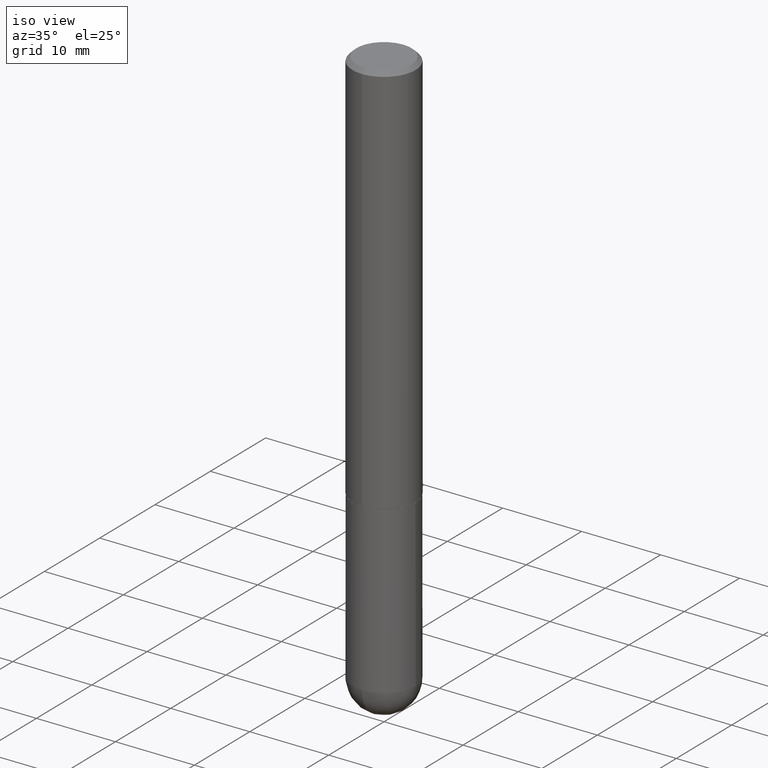
[diagram: clean part render]
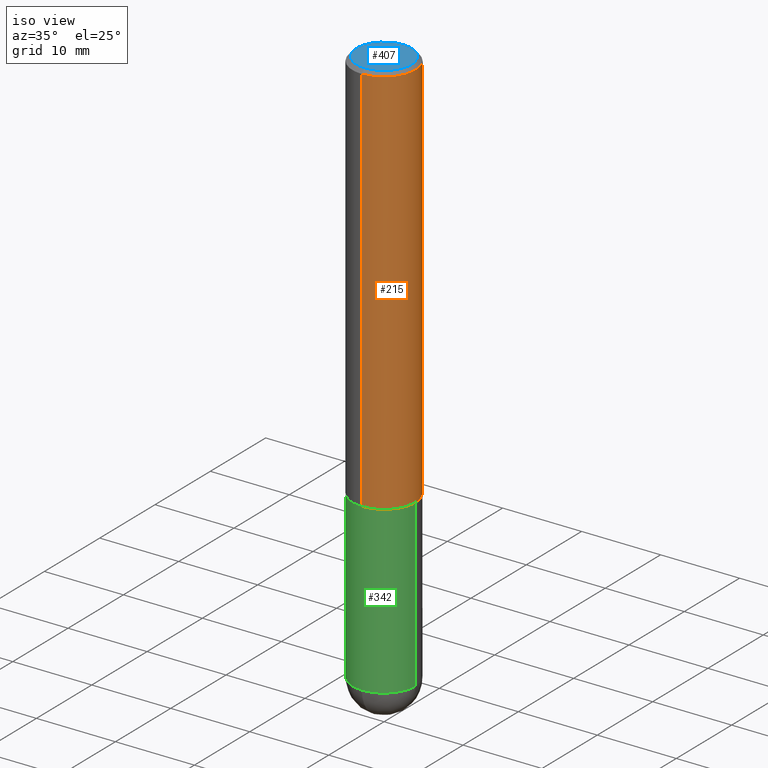
[diagram: same view with three faces highlighted in distinct colors, each labeled with its STEP entity id]
A machine part, iso view with three faces highlighted in distinct colors.
Their STEP definitions:

[orange] entity #215 — the highlighted cylindrical surface (partial cylindrical patch) has radius 4.0005 mm, axis along (-0, 0, 1).
#2 = DIRECTION ( 'NONE',  ( -6.982962677686265922E-15, -1.000000000000000000, 3.469013325287954477E-15 ) ) ;
#18 = EDGE_CURVE ( 'NONE', #45, #38, #117, .T. ) ;
#24 = CARTESIAN_POINT ( 'NONE',  ( 4.825502781678292621E-29, -6.849379294212400691E-15, -1.967499999999999805 ) ) ;
#30 = CARTESIAN_POINT ( 'NONE',  ( 0.000000000000000000, 0.000000000000000000, 0.000000000000000000 ) ) ;
#31 = EDGE_CURVE ( 'NONE', #384, #45, #404, .T. ) ;
#35 = CIRCLE ( 'NONE', #82, 0.1574999999999999456 ) ;
#38 = VERTEX_POINT ( 'NONE', #274 ) ;
#45 = VERTEX_POINT ( 'NONE', #340 ) ;
#56 = AXIS2_PLACEMENT_3D ( 'NONE', #30, #353, #89 ) ;
#59 = EDGE_CURVE ( 'NONE', #384, #326, #311, .T. ) ;
#64 = ORIENTED_EDGE ( 'NONE', *, *, #59, .F. ) ;
#70 = VECTOR ( 'NONE', #314, 39.37007874015748143 ) ;
#78 = ORIENTED_EDGE ( 'NONE', *, *, #331, .F. ) ;
#82 = AXIS2_PLACEMENT_3D ( 'NONE', #350, #251, #2 ) ;
#89 = DIRECTION ( 'NONE',  ( -6.982962677686265922E-15, -1.000000000000000000, 3.481260124123204048E-15 ) ) ;
#111 = CARTESIAN_POINT ( 'NONE',  ( 1.119104808822158195E-15, 0.1575000000000000844, -5.482984695494049531E-16 ) ) ;
#114 = DIRECTION ( 'NONE',  ( -2.452606242276134078E-29, 3.481260124123204048E-15, 1.000000000000000000 ) ) ;
#117 = LINE ( 'NONE', #111, #70 ) ;
#146 = DIRECTION ( 'NONE',  ( -2.452606242276133797E-29, 3.481260124123203654E-15, 1.000000000000000000 ) ) ;
#165 = ORIENTED_EDGE ( 'NONE', *, *, #18, .T. ) ;
#215 = ADVANCED_FACE ( 'NONE', ( #318 ), #253, .T. ) ;
#216 = CARTESIAN_POINT ( 'NONE',  ( -1.080528434649015385E-15, -0.1575000000000000289, -0.01999999999999948347 ) ) ;
#249 = ORIENTED_EDGE ( 'NONE', *, *, #31, .T. ) ;
#251 = DIRECTION ( 'NONE',  ( -2.452606242276133797E-29, 3.481260124123203654E-15, 1.000000000000000000 ) ) ;
#253 = CYLINDRICAL_SURFACE ( 'NONE', #56, 0.1575000000000000844 ) ;
#258 = EDGE_LOOP ( 'NONE', ( #249, #165, #78, #64 ) ) ;
#263 = CARTESIAN_POINT ( 'NONE',  ( -1.099816621735539951E-15, -0.1575000000000070510, -1.967499999999999138 ) ) ;
#272 = DIRECTION ( 'NONE',  ( -6.982962677686265922E-15, -1.000000000000000000, 3.469013325287948955E-15 ) ) ;
#274 = CARTESIAN_POINT ( 'NONE',  ( 1.099816621735586889E-15, 0.1574999999999998901, -0.02000000000000057634 ) ) ;
#311 = LINE ( 'NONE', #395, #333 ) ;
#314 = DIRECTION ( 'NONE',  ( -2.452606242276134078E-29, 3.481260124123204048E-15, 1.000000000000000000 ) ) ;
#318 = FACE_OUTER_BOUND ( 'NONE', #258, .T. ) ;
#326 = VERTEX_POINT ( 'NONE', #216 ) ;
#331 = EDGE_CURVE ( 'NONE', #326, #38, #35, .T. ) ;
#333 = VECTOR ( 'NONE', #114, 39.37007874015748143 ) ;
#339 = AXIS2_PLACEMENT_3D ( 'NONE', #24, #146, #272 ) ;
#340 = CARTESIAN_POINT ( 'NONE',  ( 1.119104808822183241E-15, 0.1574999999999933398, -1.967500000000000249 ) ) ;
#350 = CARTESIAN_POINT ( 'NONE',  ( 4.905212484552274391E-31, -6.962520248246417464E-17, -0.02000000000000003164 ) ) ;
#353 = DIRECTION ( 'NONE',  ( -2.452606242276133797E-29, 3.481260124123203654E-15, 1.000000000000000000 ) ) ;
#384 = VERTEX_POINT ( 'NONE', #263 ) ;
#395 = CARTESIAN_POINT ( 'NONE',  ( -1.099816621735587480E-15, -0.1575000000000000844, 5.482984695494049531E-16 ) ) ;
#404 = CIRCLE ( 'NONE', #339, 0.1575000000000001954 ) ;

[blue] entity #407 — the highlighted planar face has unit normal (0, -0, -1).
#26 = EDGE_CURVE ( 'NONE', #168, #302, #305, .T. ) ;
#28 = CARTESIAN_POINT ( 'NONE',  ( -1.011923454671300645E-15, -0.1375000000000000666, 3.662865253003379997E-16 ) ) ;
#41 = EDGE_CURVE ( 'NONE', #302, #168, #149, .T. ) ;
#42 = PLANE ( 'NONE',  #296 ) ;
#74 = DIRECTION ( 'NONE',  ( 2.452606242276133237E-29, -3.481260124123204048E-15, -1.000000000000000000 ) ) ;
#80 = DIRECTION ( 'NONE',  ( -2.452606242276133797E-29, 3.481260124123203654E-15, 1.000000000000000000 ) ) ;
#85 = DIRECTION ( 'NONE',  ( -6.982962677686265922E-15, -1.000000000000000000, 3.481260124123203654E-15 ) ) ;
#131 = EDGE_LOOP ( 'NONE', ( #282, #230 ) ) ;
#149 = CIRCLE ( 'NONE', #218, 0.1375000000000000666 ) ;
#152 = CARTESIAN_POINT ( 'NONE',  ( 2.756404244058457991E-45, -3.912474825922058918E-31, -1.123867417666027294E-16 ) ) ;
#168 = VERTEX_POINT ( 'NONE', #175 ) ;
#175 = CARTESIAN_POINT ( 'NONE',  ( 1.029986994958724576E-15, 0.1375000000000000666, -5.910600088335435079E-16 ) ) ;
#208 = DIRECTION ( 'NONE',  ( -6.982962677686265922E-15, -1.000000000000000000, 3.481260124123203654E-15 ) ) ;
#218 = AXIS2_PLACEMENT_3D ( 'NONE', #278, #80, #208 ) ;
#230 = ORIENTED_EDGE ( 'NONE', *, *, #41, .T. ) ;
#246 = DIRECTION ( 'NONE',  ( -2.452606242276133797E-29, 3.481260124123203654E-15, 1.000000000000000000 ) ) ;
#265 = FACE_OUTER_BOUND ( 'NONE', #131, .T. ) ;
#275 = AXIS2_PLACEMENT_3D ( 'NONE', #152, #246, #85 ) ;
#278 = CARTESIAN_POINT ( 'NONE',  ( 2.756404244058457991E-45, -3.912474825922058918E-31, -1.123867417666027294E-16 ) ) ;
#282 = ORIENTED_EDGE ( 'NONE', *, *, #26, .T. ) ;
#290 = CARTESIAN_POINT ( 'NONE',  ( 9.601573681818620671E-16, 0.1375000000000000666, -5.348666379502421309E-16 ) ) ;
#296 = AXIS2_PLACEMENT_3D ( 'NONE', #290, #74, #332 ) ;
#302 = VERTEX_POINT ( 'NONE', #28 ) ;
#305 = CIRCLE ( 'NONE', #275, 0.1375000000000000666 ) ;
#332 = DIRECTION ( 'NONE',  ( 6.982962677686265922E-15, 1.000000000000000000, -3.481260124123204048E-15 ) ) ;
#407 = ADVANCED_FACE ( 'NONE', ( #265 ), #42, .F. ) ;

[green] entity #342 — the highlighted cylindrical surface (partial cylindrical patch) has radius 4.0005 mm, axis along (-0, 0, 1).
#7 = DIRECTION ( 'NONE',  ( -2.445468806185136597E-29, 3.491481338843145583E-15, 1.000000000000000000 ) ) ;
#8 = VERTEX_POINT ( 'NONE', #401 ) ;
#9 = DIRECTION ( 'NONE',  ( -2.445468806185136597E-29, 3.491481338843145583E-15, 1.000000000000000000 ) ) ;
#47 = CARTESIAN_POINT ( 'NONE',  ( 6.835818953929311707E-29, -9.759737786468243605E-15, -2.795299999999999674 ) ) ;
#60 = CARTESIAN_POINT ( 'NONE',  ( -0.1575000000000000011, 1.119104808822157801E-15, -7.747322767151475583E-30 ) ) ;
#61 = LINE ( 'NONE', #186, #184 ) ;
#63 = DIRECTION ( 'NONE',  ( 1.000000000000000000, -6.982962677686261977E-15, 0.000000000000000000 ) ) ;
#73 = VERTEX_POINT ( 'NONE', #373 ) ;
#77 = FACE_OUTER_BOUND ( 'NONE', #139, .T. ) ;
#93 = CARTESIAN_POINT ( 'NONE',  ( 0.1575000000000000011, -9.416176022726072770E-15, -2.795299999999999674 ) ) ;
#94 = CIRCLE ( 'NONE', #160, 0.1575000000000000011 ) ;
#100 = DIRECTION ( 'NONE',  ( 1.000000000000000000, -6.982962677686268288E-15, 0.000000000000000000 ) ) ;
#103 = VERTEX_POINT ( 'NONE', #119 ) ;
#119 = CARTESIAN_POINT ( 'NONE',  ( -0.1575000000000000011, -7.197254592168330052E-15, -1.968499999999999694 ) ) ;
#127 = DIRECTION ( 'NONE',  ( -2.445468806185136877E-29, 3.491481338843145188E-15, 1.000000000000000000 ) ) ;
#139 = EDGE_LOOP ( 'NONE', ( #330, #300, #297, #238, #164 ) ) ;
#156 = CARTESIAN_POINT ( 'NONE',  ( 6.835818953929311707E-29, -9.759737786468243605E-15, -2.795299999999999674 ) ) ;
#160 = AXIS2_PLACEMENT_3D ( 'NONE', #335, #9, #100 ) ;
#164 = ORIENTED_EDGE ( 'NONE', *, *, #366, .F. ) ;
#166 = AXIS2_PLACEMENT_3D ( 'NONE', #47, #7, #327 ) ;
#171 = AXIS2_PLACEMENT_3D ( 'NONE', #191, #228, #198 ) ;
#180 = DIRECTION ( 'NONE',  ( -2.445468806185136877E-29, 3.491481338843145188E-15, 1.000000000000000000 ) ) ;
#184 = VECTOR ( 'NONE', #127, 39.37007874015748143 ) ;
#185 = LINE ( 'NONE', #60, #203 ) ;
#186 = CARTESIAN_POINT ( 'NONE',  ( 0.1575000000000000011, -1.099816621735586889E-15, 7.679978421878598033E-30 ) ) ;
#191 = CARTESIAN_POINT ( 'NONE',  ( 0.000000000000000000, 0.000000000000000000, 0.000000000000000000 ) ) ;
#198 = DIRECTION ( 'NONE',  ( 1.000000000000000000, -6.982962677686265922E-15, 4.876176775795935232E-29 ) ) ;
#203 = VECTOR ( 'NONE', #180, 39.37007874015748143 ) ;
#219 = DIRECTION ( 'NONE',  ( -2.445468806185136597E-29, 3.491481338843145583E-15, 1.000000000000000000 ) ) ;
#220 = EDGE_CURVE ( 'NONE', #232, #73, #61, .T. ) ;
#222 = VERTEX_POINT ( 'NONE', #381 ) ;
#228 = DIRECTION ( 'NONE',  ( -2.445468806185136597E-29, 3.491481338843145583E-15, 1.000000000000000000 ) ) ;
#232 = VERTEX_POINT ( 'NONE', #93 ) ;
#233 = CYLINDRICAL_SURFACE ( 'NONE', #171, 0.1575000000000000011 ) ;
#236 = CIRCLE ( 'NONE', #288, 0.1575000000000000011 ) ;
#238 = ORIENTED_EDGE ( 'NONE', *, *, #220, .T. ) ;
#252 = EDGE_CURVE ( 'NONE', #222, #232, #236, .T. ) ;
#288 = AXIS2_PLACEMENT_3D ( 'NONE', #156, #219, #63 ) ;
#292 = EDGE_CURVE ( 'NONE', #8, #103, #185, .T. ) ;
#297 = ORIENTED_EDGE ( 'NONE', *, *, #252, .T. ) ;
#300 = ORIENTED_EDGE ( 'NONE', *, *, #412, .T. ) ;
#327 = DIRECTION ( 'NONE',  ( 1.000000000000000000, -6.982962677686261977E-15, 0.000000000000000000 ) ) ;
#330 = ORIENTED_EDGE ( 'NONE', *, *, #292, .F. ) ;
#335 = CARTESIAN_POINT ( 'NONE',  ( 4.813905344975440714E-29, -6.872981015512730918E-15, -1.968499999999999694 ) ) ;
#342 = ADVANCED_FACE ( 'NONE', ( #77 ), #233, .T. ) ;
#352 = CIRCLE ( 'NONE', #166, 0.1575000000000000011 ) ;
#366 = EDGE_CURVE ( 'NONE', #103, #73, #94, .T. ) ;
#373 = CARTESIAN_POINT ( 'NONE',  ( 0.1575000000000000011, -7.972797637248318399E-15, -1.968499999999999694 ) ) ;
#381 = CARTESIAN_POINT ( 'NONE',  ( -1.119104808822091931E-15, -0.1575000000000101319, -2.795299999999998786 ) ) ;
#401 = CARTESIAN_POINT ( 'NONE',  ( -0.1575000000000000011, -7.197254592168330052E-15, -2.795299999999999674 ) ) ;
#412 = EDGE_CURVE ( 'NONE', #8, #222, #352, .T. ) ;